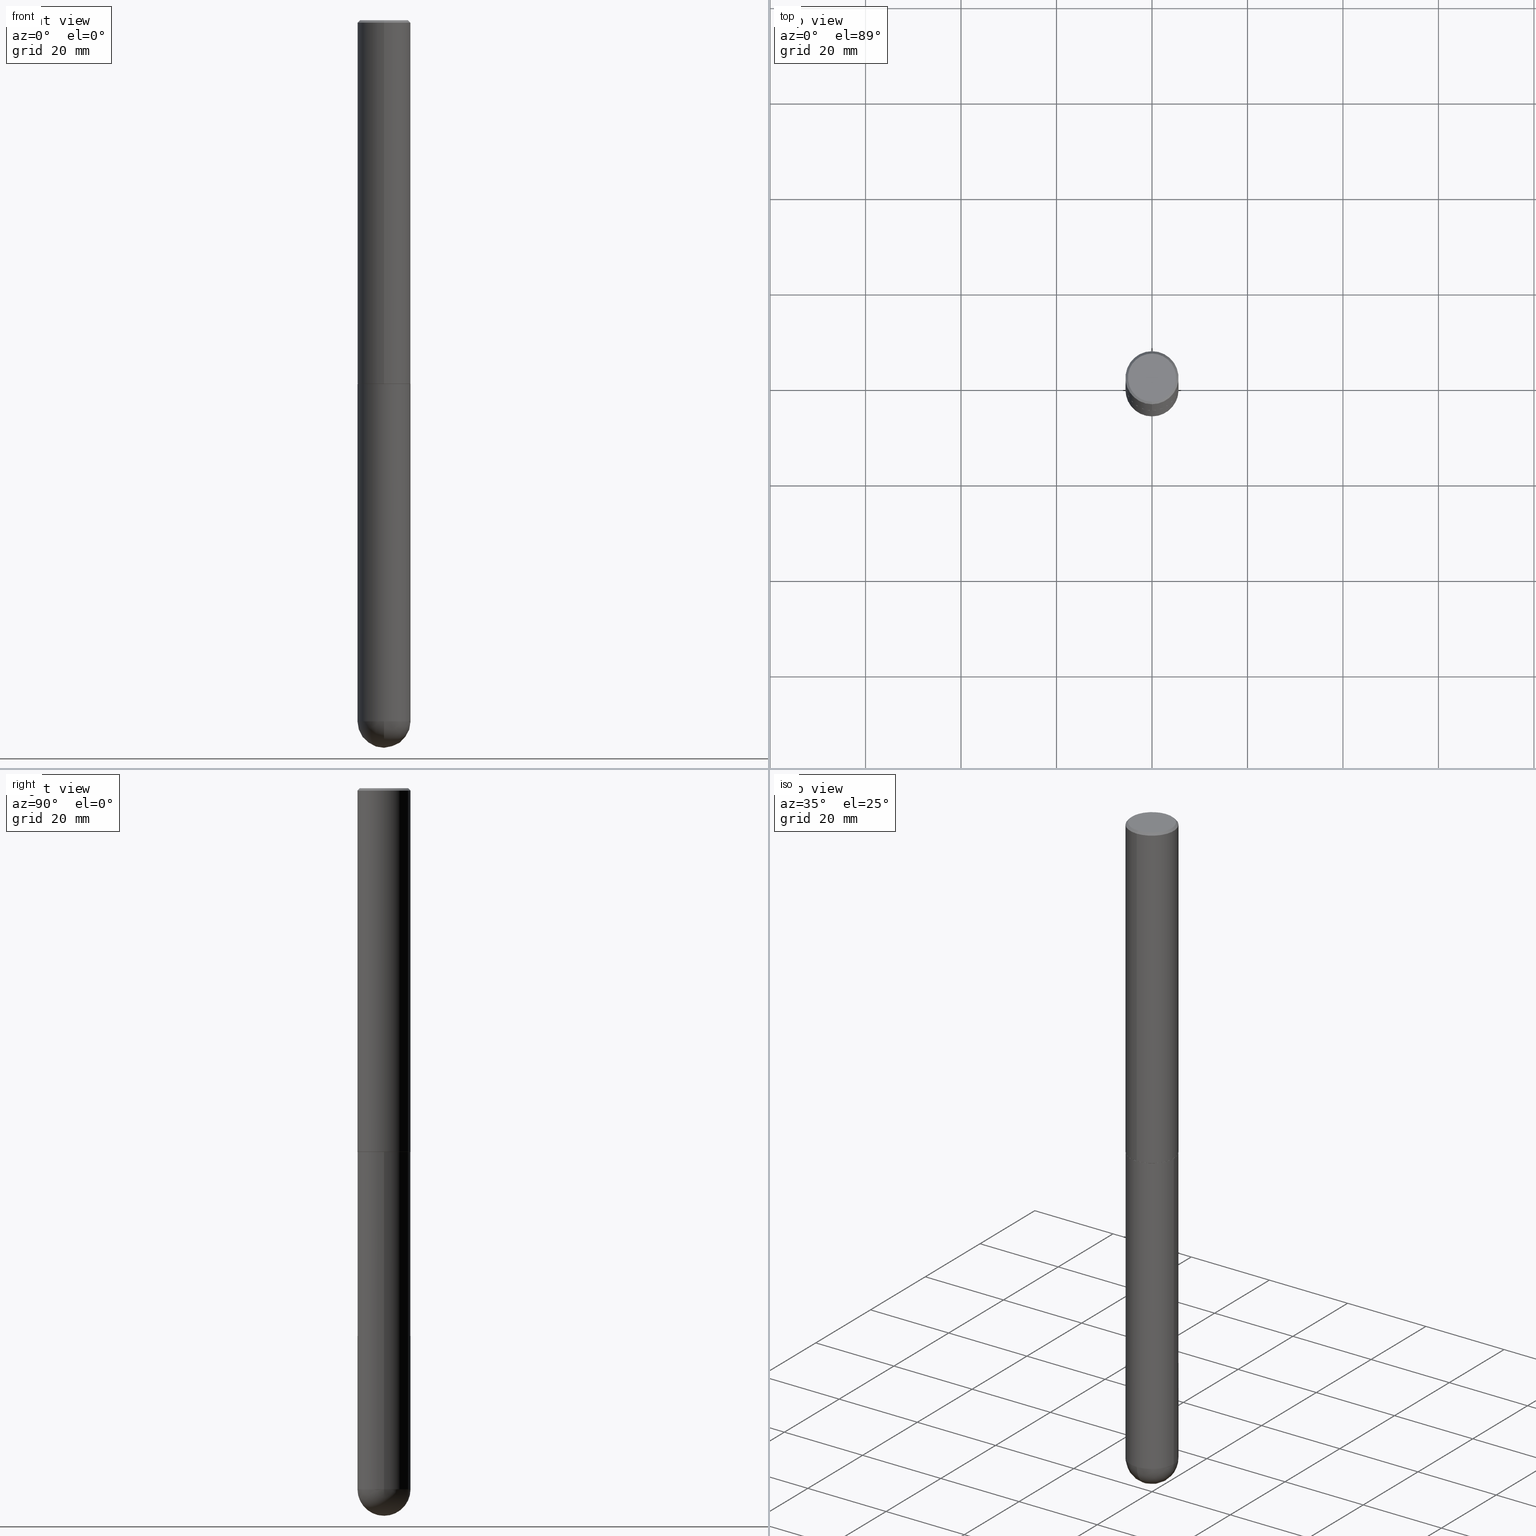
[diagram: canonical four-view strip — front | top / right | iso, engineering-drawing reading convention]
A machine part, canonical four-view strip (front | top / right | iso — engineering-drawing reading convention). The complete STEP part file that produces these views, byte-faithful:
ISO-10303-21;
HEADER;
FILE_DESCRIPTION (( 'STEP AP203' ),
    '1' );
FILE_NAME ('70457.STEP',
    '2024-04-10T12:33:18',
    ( '' ),
    ( '' ),
    'SwSTEP 2.0',
    'SolidWorks 2023',
    '' );
FILE_SCHEMA (( 'CONFIG_CONTROL_DESIGN' ));
ENDSEC;

DATA;
#1 = FACE_OUTER_BOUND ( 'NONE', #335, .T. ) ;
#2 = DIRECTION ( 'NONE',  ( -1.000000000000000000, 6.982962677686265922E-15, -4.883557194083111780E-29 ) ) ;
#3 = CIRCLE ( 'NONE', #195, 0.2187500000000000278 ) ;
#4 = LINE ( 'NONE', #160, #269 ) ;
#5 = DIRECTION ( 'NONE',  ( -2.445468806185136597E-29, 3.491481338843145583E-15, 1.000000000000000000 ) ) ;
#6 = AXIS2_PLACEMENT_3D ( 'NONE', #359, #299, #47 ) ;
#7 = DIRECTION ( 'NONE',  ( -6.982962677686265922E-15, -1.000000000000000000, 2.509160040104949192E-15 ) ) ;
#8 = ORIENTED_EDGE ( 'NONE', *, *, #348, .T. ) ;
#9 = CARTESIAN_POINT ( 'NONE',  ( 1.554312234475257811E-15, 0.2187499999999898692, -2.999000000000000554 ) ) ;
#10 = ORIENTED_EDGE ( 'NONE', *, *, #205, .T. ) ;
#11 = CIRCLE ( 'NONE', #240, 0.2187500000000000000 ) ;
#12 = CONICAL_SURFACE ( 'NONE', #82, 0.2187500000000000278, 0.7853981633974473908 ) ;
#13 = APPLICATION_PROTOCOL_DEFINITION ( 'international standard', 'config_control_design', 1994, #354 ) ;
#14 = VERTEX_POINT ( 'NONE', #407 ) ;
#15 = DIRECTION ( 'NONE',  ( -6.982962677686265922E-15, -1.000000000000000000, 3.492862791899307676E-15 ) ) ;
#16 = ORIENTED_EDGE ( 'NONE', *, *, #193, .T. ) ;
#17 = ADVANCED_FACE ( 'NONE', ( #310 ), #25, .T. ) ;
#18 = FACE_OUTER_BOUND ( 'NONE', #196, .T. ) ;
#19 = AXIS2_PLACEMENT_3D ( 'NONE', #402, #116, #88 ) ;
#20 = CARTESIAN_POINT ( 'NONE',  ( -1.432128957034807592E-15, -0.1987500000000002320, 4.679535352411635507E-16 ) ) ;
#21 = DIRECTION ( 'NONE',  ( -1.000000000000000000, 7.105427357601001070E-15, -4.926315508542082329E-29 ) ) ;
#22 = COORDINATED_UNIVERSAL_TIME_OFFSET ( 5, 0, .BEHIND. ) ;
#23 = DIRECTION ( 'NONE',  ( -2.445024740490438590E-29, 3.492117266192602809E-15, 1.000000000000000000 ) ) ;
#24 = DATE_AND_TIME ( #377, #152 ) ;
#25 = CYLINDRICAL_SURFACE ( 'NONE', #141, 0.2187500000000001943 ) ;
#26 = PERSON_AND_ORGANIZATION ( #162, #100 ) ;
#27 = VECTOR ( 'NONE', #378, 39.37007874015748143 ) ;
#28 = DIRECTION ( 'NONE',  ( -2.445024740490438590E-29, 3.492117266192602809E-15, 1.000000000000000000 ) ) ;
#29 = APPROVAL_PERSON_ORGANIZATION ( #221, #314, #409 ) ;
#30 = DIRECTION ( 'NONE',  ( -6.982962677686265922E-15, -1.000000000000000000, 3.492862791899307676E-15 ) ) ;
#31 = CARTESIAN_POINT ( 'NONE',  ( -0.2187499999999999445, 1.554312234475218762E-15, -1.076017050993260482E-29 ) ) ;
#32 = EDGE_CURVE ( 'NONE', #55, #173, #247, .T. ) ;
#33 = AXIS2_PLACEMENT_3D ( 'NONE', #347, #225, #379 ) ;
#34 = AXIS2_PLACEMENT_3D ( 'NONE', #177, #21, #84 ) ;
#35 = CC_DESIGN_APPROVAL ( #314, ( #214 ) ) ;
#36 = APPLICATION_CONTEXT ( 'configuration controlled 3d designs of mechanical parts and assemblies' ) ;
#37 = CC_DESIGN_PERSON_AND_ORGANIZATION_ASSIGNMENT ( #218, #175, ( #316 ) ) ;
#38 = EDGE_CURVE ( 'NONE', #124, #73, #78, .T. ) ;
#39 = AXIS2_PLACEMENT_3D ( 'NONE', #107, #57, #327 ) ;
#40 = DIRECTION ( 'NONE',  ( 6.982962677686265922E-15, 1.000000000000000000, -3.492862791899307676E-15 ) ) ;
#41 = EDGE_LOOP ( 'NONE', ( #42, #237, #133, #16 ) ) ;
#42 = ORIENTED_EDGE ( 'NONE', *, *, #256, .F. ) ;
#43 = AXIS2_PLACEMENT_3D ( 'NONE', #367, #333, #52 ) ;
#44 = CARTESIAN_POINT ( 'NONE',  ( -1.554312234475076570E-15, -0.2187500000000200950, -5.781249999999999112 ) ) ;
#45 = ADVANCED_FACE ( 'NONE', ( #50 ), #404, .F. ) ;
#46 = ORIENTED_EDGE ( 'NONE', *, *, #300, .F. ) ;
#47 = DIRECTION ( 'NONE',  ( -6.982962677686265922E-15, -1.000000000000000000, 2.509160040104949192E-15 ) ) ;
#48 = CARTESIAN_POINT ( 'NONE',  ( 1.550759520796492805E-15, 0.2177499999999895075, -3.000000000000000444 ) ) ;
#49 = DATE_AND_TIME ( #61, #264 ) ;
#50 = FACE_OUTER_BOUND ( 'NONE', #252, .T. ) ;
#51 = EDGE_CURVE ( 'NONE', #98, #14, #158, .T. ) ;
#52 = DIRECTION ( 'NONE',  ( -6.982962677686265922E-15, -1.000000000000000000, 3.492117266192603203E-15 ) ) ;
#53 = CALENDAR_DATE ( 2024, 10, 4 ) ;
#54 = AXIS2_PLACEMENT_3D ( 'NONE', #112, #250, #244 ) ;
#55 = VERTEX_POINT ( 'NONE', #278 ) ;
#56 = DIRECTION ( 'NONE',  ( 1.000000000000000000, -6.982962677686265133E-15, 0.000000000000000000 ) ) ;
#57 = DIRECTION ( 'NONE',  ( -2.445468806185136597E-29, 3.491481338843145583E-15, 1.000000000000000000 ) ) ;
#58 = PERSON_AND_ORGANIZATION ( #162, #100 ) ;
#59 = EDGE_LOOP ( 'NONE', ( #369, #79, #399, #199 ) ) ;
#60 = FACE_OUTER_BOUND ( 'NONE', #104, .T. ) ;
#61 = CALENDAR_DATE ( 2024, 10, 4 ) ;
#62 = CIRCLE ( 'NONE', #213, 0.2187500000000000000 ) ;
#63 = EDGE_CURVE ( 'NONE', #392, #411, #178, .T. ) ;
#64 = ORIENTED_EDGE ( 'NONE', *, *, #51, .T. ) ;
#65 = DIRECTION ( 'NONE',  ( 6.982962677686265922E-15, 1.000000000000000000, -4.995379188414666942E-15 ) ) ;
#66 = EDGE_CURVE ( 'NONE', #411, #71, #182, .T. ) ;
#67 = AXIS2_PLACEMENT_3D ( 'NONE', #219, #341, #381 ) ;
#68 = CIRCLE ( 'NONE', #99, 0.2187499999999999445 ) ;
#69 = VERTEX_POINT ( 'NONE', #150 ) ;
#70 = DIRECTION ( 'NONE',  ( 0.000000000000000000, 0.000000000000000000, 1.000000000000000000 ) ) ;
#71 = VERTEX_POINT ( 'NONE', #281 ) ;
#72 = DIRECTION ( 'NONE',  ( -2.445024740490438590E-29, 3.492117266192602809E-15, 1.000000000000000000 ) ) ;
#73 = VERTEX_POINT ( 'NONE', #288 ) ;
#74 = CIRCLE ( 'NONE', #169, 0.2187499999999999445 ) ;
#75 = CARTESIAN_POINT ( 'NONE',  ( 7.332629196730824746E-29, -1.047285968131161497E-14, -2.999000000000000110 ) ) ;
#76 = ORIENTED_EDGE ( 'NONE', *, *, #256, .T. ) ;
#77 = CC_DESIGN_DATE_AND_TIME_ASSIGNMENT ( #148, #368, ( #214 ) ) ;
#78 = LINE ( 'NONE', #189, #223 ) ;
#79 = ORIENTED_EDGE ( 'NONE', *, *, #300, .T. ) ;
#80 = AXIS2_PLACEMENT_3D ( 'NONE', #157, #2, #65 ) ;
#81 = PRODUCT_DEFINITION_FORMATION_WITH_SPECIFIED_SOURCE ( 'ANY', '', #410, .NOT_KNOWN. ) ;
#82 = AXIS2_PLACEMENT_3D ( 'NONE', #201, #164, #40 ) ;
#83 = EDGE_LOOP ( 'NONE', ( #206, #76, #111, #106 ) ) ;
#84 = DIRECTION ( 'NONE',  ( -7.105427357601001070E-15, -1.000000000000000000, 0.000000000000000000 ) ) ;
#85 = DIRECTION ( 'NONE',  ( -6.982962677686265922E-15, -1.000000000000000000, 3.492117266192602415E-15 ) ) ;
#86 = CARTESIAN_POINT ( 'NONE',  ( 4.890049480980889546E-31, -6.984234532385222726E-17, -0.02000000000000005246 ) ) ;
#87 = DATE_AND_TIME ( #303, #260 ) ;
#88 = DIRECTION ( 'NONE',  ( -1.000000000000000000, 6.982962677686265922E-15, -4.876176775795935793E-29 ) ) ;
#89 = AXIS2_PLACEMENT_3D ( 'NONE', #86, #376, #220 ) ;
#90 = CARTESIAN_POINT ( 'NONE',  ( 1.413786653575781871E-28, -2.018512649018693374E-14, -5.781250000000000000 ) ) ;
#91 = ADVANCED_FACE ( 'NONE', ( #1 ), #120, .T. ) ;
#92 = CARTESIAN_POINT ( 'NONE',  ( 7.335074221471313807E-29, -1.047635179857780724E-14, -2.999999999999999556 ) ) ;
#93 = DIRECTION ( 'NONE',  ( 2.445024740490438590E-29, -3.492117266192602415E-15, -1.000000000000000000 ) ) ;
#94 = CIRCLE ( 'NONE', #231, 0.2187499999999999445 ) ;
#95 = AXIS2_PLACEMENT_3D ( 'NONE', #75, #266, #96 ) ;
#96 = DIRECTION ( 'NONE',  ( -6.982962677686265922E-15, -1.000000000000000000, 2.497689594207322427E-15 ) ) ;
#97 = LENGTH_MEASURE_WITH_UNIT ( LENGTH_MEASURE( 0.02539999999999999897 ), #267 );
#98 = VERTEX_POINT ( 'NONE', #20 ) ;
#99 = AXIS2_PLACEMENT_3D ( 'NONE', #349, #5, #315 ) ;
#100 = ORGANIZATION ( 'UNSPECIFIED', 'UNSPECIFIED', '' ) ;
#101 = CARTESIAN_POINT ( 'NONE',  ( 0.000000000000000000, 0.000000000000000000, 0.000000000000000000 ) ) ;
#102 = APPROVAL ( #272, 'UNSPECIFIED' ) ;
#103 = PERSON_AND_ORGANIZATION_ROLE ( 'design_owner' ) ;
#104 = EDGE_LOOP ( 'NONE', ( #208, #10, #216, #332 ) ) ;
#105 = DIRECTION ( 'NONE',  ( -2.445024740490438590E-29, 3.492117266192602809E-15, 1.000000000000000000 ) ) ;
#106 = ORIENTED_EDGE ( 'NONE', *, *, #190, .F. ) ;
#107 = CARTESIAN_POINT ( 'NONE',  ( 0.000000000000000000, 0.000000000000000000, 0.000000000000000000 ) ) ;
#108 = CIRCLE ( 'NONE', #345, 0.2177499999999999991 ) ;
#109 = AXIS2_PLACEMENT_3D ( 'NONE', #328, #317, #132 ) ;
#110 = PERSON_AND_ORGANIZATION_ROLE ( 'classification_officer' ) ;
#111 = ORIENTED_EDGE ( 'NONE', *, *, #161, .T. ) ;
#112 = CARTESIAN_POINT ( 'NONE',  ( 1.380674675784393807E-28, -2.065930885832698876E-14, -5.781250000000000888 ) ) ;
#113 = APPROVAL_DATE_TIME ( #245, #102 ) ;
#114 = ORIENTED_EDGE ( 'NONE', *, *, #63, .T. ) ;
#115 = APPROVAL_STATUS ( 'not_yet_approved' ) ;
#116 = DIRECTION ( 'NONE',  ( 2.438088387897960049E-29, -3.491481338843145188E-15, -1.000000000000000000 ) ) ;
#117 = DIRECTION ( 'NONE',  ( 1.000000000000000000, -6.982962677686262766E-15, 0.000000000000000000 ) ) ;
#118 = VECTOR ( 'NONE', #271, 39.37007874015748143 ) ;
#119 = COORDINATED_UNIVERSAL_TIME_OFFSET ( 5, 0, .BEHIND. ) ;
#120 = CYLINDRICAL_SURFACE ( 'NONE', #282, 0.2187500000000001943 ) ;
#121 = APPROVAL ( #251, 'UNSPECIFIED' ) ;
#122 = DIRECTION ( 'NONE',  ( -2.445024740490438870E-29, 3.492117266192602415E-15, 1.000000000000000000 ) ) ;
#123 = COORDINATED_UNIVERSAL_TIME_OFFSET ( 5, 0, .BEHIND. ) ;
#124 = VERTEX_POINT ( 'NONE', #143 ) ;
#125 = CARTESIAN_POINT ( 'NONE',  ( 4.890049480980889546E-31, -6.984234532385222726E-17, -0.02000000000000005246 ) ) ;
#126 = DIRECTION ( 'NONE',  ( -2.445468806185136597E-29, 3.491481338843145583E-15, 1.000000000000000000 ) ) ;
#127 = EDGE_CURVE ( 'NONE', #364, #73, #136, .T. ) ;
#128 = DIRECTION ( 'NONE',  ( -6.982962677686265922E-15, -1.000000000000000000, 2.509160040104949192E-15 ) ) ;
#129 = DESIGN_CONTEXT ( 'detailed design', #36, 'design' ) ;
#130 = CIRCLE ( 'NONE', #43, 0.1987500000000002320 ) ;
#131 = EDGE_CURVE ( 'NONE', #55, #392, #74, .T. ) ;
#132 = DIRECTION ( 'NONE',  ( 1.000000000000000000, -6.982962677686266711E-15, 4.876176775795935232E-29 ) ) ;
#133 = ORIENTED_EDGE ( 'NONE', *, *, #190, .T. ) ;
#134 = CARTESIAN_POINT ( 'NONE',  ( -0.2187499999999999445, -1.377547301888296510E-14, -5.781250000000000000 ) ) ;
#135 = EDGE_CURVE ( 'NONE', #69, #392, #259, .T. ) ;
#136 = CIRCLE ( 'NONE', #67, 0.2187500000000003608 ) ;
#137 = CC_DESIGN_APPROVAL ( #121, ( #81 ) ) ;
#138 = MECHANICAL_CONTEXT ( 'NONE', #354, 'mechanical' ) ;
#139 = ORIENTED_EDGE ( 'NONE', *, *, #386, .F. ) ;
#140 = ORIENTED_EDGE ( 'NONE', *, *, #63, .F. ) ;
#141 = AXIS2_PLACEMENT_3D ( 'NONE', #248, #23, #185 ) ;
#142 =( GEOMETRIC_REPRESENTATION_CONTEXT ( 3 ) GLOBAL_UNCERTAINTY_ASSIGNED_CONTEXT ( ( #191 ) ) GLOBAL_UNIT_ASSIGNED_CONTEXT ( ( #165, #170, #204 ) ) REPRESENTATION_CONTEXT ( 'NONE', 'WORKASPACE' ) );
#143 = CARTESIAN_POINT ( 'NONE',  ( -1.520540123066111070E-15, -0.2177500000000104630, -2.999999999999999112 ) ) ;
#144 = CARTESIAN_POINT ( 'NONE',  ( -1.500733937012521938E-15, -0.2187500000000000833, -0.01999999999999928571 ) ) ;
#145 = SHAPE_DEFINITION_REPRESENTATION ( #346, #373 ) ;
#146 = DIRECTION ( 'NONE',  ( -4.937700262165980614E-15, -0.7071067811867502995, 0.7071067811863447350 ) ) ;
#147 = LINE ( 'NONE', #217, #382 ) ;
#148 = DATE_AND_TIME ( #308, #391 ) ;
#149 = PRODUCT_RELATED_PRODUCT_CATEGORY ( 'detail', '', ( #410 ) ) ;
#150 = CARTESIAN_POINT ( 'NONE',  ( 1.435104644048483615E-28, -2.140967582683325082E-14, -6.000000000000000888 ) ) ;
#151 = DIRECTION ( 'NONE',  ( -6.982962677686265922E-15, -1.000000000000000000, 2.509160040104949192E-15 ) ) ;
#152 = LOCAL_TIME ( 8, 33, 18.00000000000000000, #401 ) ;
#153 = EDGE_LOOP ( 'NONE', ( #353, #318, #235, #320 ) ) ;
#154 = CARTESIAN_POINT ( 'NONE',  ( 1.413786653575781871E-28, -2.018512649018693374E-14, -5.781250000000000000 ) ) ;
#155 = DIRECTION ( 'NONE',  ( -2.445468806185136877E-29, 3.491481338843145188E-15, 1.000000000000000000 ) ) ;
#156 = CC_DESIGN_PERSON_AND_ORGANIZATION_ASSIGNMENT ( #184, #110, ( #214 ) ) ;
#157 = CARTESIAN_POINT ( 'NONE',  ( 1.380674675784393807E-28, -2.065930885832698876E-14, -5.781250000000000888 ) ) ;
#158 = CIRCLE ( 'NONE', #390, 0.1987500000000002320 ) ;
#159 = CC_DESIGN_APPROVAL ( #102, ( #316 ) ) ;
#160 = CARTESIAN_POINT ( 'NONE',  ( 1.554312234475220340E-15, 0.2187500000000001943, -7.639006519796324684E-16 ) ) ;
#161 = EDGE_CURVE ( 'NONE', #274, #396, #3, .T. ) ;
#162 = PERSON ( 'UNSPECIFIED', 'UNSPECIFIED', 'UNSPECIFIED', ('UNSPECIFIED'), ('UNSPECIFIED'), ('UNSPECIFIED') ) ;
#163 = VECTOR ( 'NONE', #122, 39.37007874015748143 ) ;
#164 = DIRECTION ( 'NONE',  ( 2.445024740490438590E-29, -3.492117266192602809E-15, -1.000000000000000000 ) ) ;
#165 =( CONVERSION_BASED_UNIT ( 'INCH', #97 ) LENGTH_UNIT ( ) NAMED_UNIT ( #366 ) );
#166 = ORIENTED_EDGE ( 'NONE', *, *, #265, .F. ) ;
#167 = FACE_OUTER_BOUND ( 'NONE', #41, .T. ) ;
#168 = ORIENTED_EDGE ( 'NONE', *, *, #261, .T. ) ;
#169 = AXIS2_PLACEMENT_3D ( 'NONE', #90, #126, #257 ) ;
#170 =( NAMED_UNIT ( * ) PLANE_ANGLE_UNIT ( ) SI_UNIT ( $, .RADIAN. ) );
#171 = FACE_OUTER_BOUND ( 'NONE', #306, .T. ) ;
#172 = CARTESIAN_POINT ( 'NONE',  ( 7.336406418555408669E-29, -1.047444401652943478E-14, -2.999999999999999556 ) ) ;
#173 = VERTEX_POINT ( 'NONE', #287 ) ;
#174 = EDGE_CURVE ( 'NONE', #411, #360, #94, .T. ) ;
#175 = PERSON_AND_ORGANIZATION_ROLE ( 'creator' ) ;
#176 = CARTESIAN_POINT ( 'NONE',  ( 5.528317600516741827E-45, -7.895843762255161578E-31, -2.261047714146171219E-16 ) ) ;
#177 = CARTESIAN_POINT ( 'NONE',  ( 1.380674675784393807E-28, -2.065930885832698876E-14, -5.781250000000000888 ) ) ;
#178 = CIRCLE ( 'NONE', #211, 0.2187499999999999445 ) ;
#179 = EDGE_LOOP ( 'NONE', ( #166, #286, #268, #270 ) ) ;
#180 = CYLINDRICAL_SURFACE ( 'NONE', #39, 0.2187499999999999445 ) ;
#181 = CC_DESIGN_PERSON_AND_ORGANIZATION_ASSIGNMENT ( #393, #103, ( #410 ) ) ;
#182 = LINE ( 'NONE', #31, #263 ) ;
#183 = SPHERICAL_SURFACE ( 'NONE', #80, 0.2187499999999993616 ) ;
#184 = PERSON_AND_ORGANIZATION ( #162, #100 ) ;
#185 = DIRECTION ( 'NONE',  ( -6.982962677686265922E-15, -1.000000000000000000, 3.492117266192602415E-15 ) ) ;
#186 = FACE_OUTER_BOUND ( 'NONE', #179, .T. ) ;
#187 = CONICAL_SURFACE ( 'NONE', #89, 0.2187500000000000278, 0.7853981633974473908 ) ;
#188 = APPROVAL_PERSON_ORGANIZATION ( #26, #121, #215 ) ;
#189 = CARTESIAN_POINT ( 'NONE',  ( -1.520540123066111070E-15, -0.2177500000000104630, -2.999999999999999112 ) ) ;
#190 = EDGE_CURVE ( 'NONE', #14, #396, #147, .T. ) ;
#191 = UNCERTAINTY_MEASURE_WITH_UNIT (LENGTH_MEASURE( 1.000000000000000082E-05 ), #165, 'distance_accuracy_value', 'NONE');
#192 = MANIFOLD_SOLID_BREP ( 'Body-Move/Copy2[2]', #337 ) ;
#193 = EDGE_CURVE ( 'NONE', #396, #274, #311, .T. ) ;
#194 = CARTESIAN_POINT ( 'NONE',  ( 1.527523085743871237E-15, 0.2187499999999999445, -0.02000000000000081574 ) ) ;
#195 = AXIS2_PLACEMENT_3D ( 'NONE', #125, #312, #30 ) ;
#196 = EDGE_LOOP ( 'NONE', ( #243, #326, #339, #140 ) ) ;
#197 = ADVANCED_FACE ( 'NONE', ( #273 ), #241, .F. ) ;
#198 = CYLINDRICAL_SURFACE ( 'NONE', #109, 0.2187499999999999445 ) ;
#199 = ORIENTED_EDGE ( 'NONE', *, *, #348, .F. ) ;
#200 = ORIENTED_EDGE ( 'NONE', *, *, #329, .F. ) ;
#201 = CARTESIAN_POINT ( 'NONE',  ( 4.890049480980889546E-31, -6.984234532385222726E-17, -0.02000000000000005246 ) ) ;
#202 = AXIS2_PLACEMENT_3D ( 'NONE', #350, #307, #151 ) ;
#203 = DIRECTION ( 'NONE',  ( -6.982962677686265922E-15, -1.000000000000000000, 3.492117266192602415E-15 ) ) ;
#204 =( NAMED_UNIT ( * ) SI_UNIT ( $, .STERADIAN. ) SOLID_ANGLE_UNIT ( ) );
#205 = EDGE_CURVE ( 'NONE', #239, #364, #280, .T. ) ;
#206 = ORIENTED_EDGE ( 'NONE', *, *, #51, .F. ) ;
#207 = CARTESIAN_POINT ( 'NONE',  ( 4.890049480980889546E-31, -6.984234532385222726E-17, -0.02000000000000005246 ) ) ;
#208 = ORIENTED_EDGE ( 'NONE', *, *, #386, .T. ) ;
#209 = LINE ( 'NONE', #370, #275 ) ;
#210 = ORIENTED_EDGE ( 'NONE', *, *, #66, .F. ) ;
#211 = AXIS2_PLACEMENT_3D ( 'NONE', #313, #302, #56 ) ;
#212 = ADVANCED_FACE ( 'NONE', ( #171 ), #180, .T. ) ;
#213 = AXIS2_PLACEMENT_3D ( 'NONE', #298, #331, #117 ) ;
#214 = SECURITY_CLASSIFICATION ( '', '', #254 ) ;
#215 = APPROVAL_ROLE ( '' ) ;
#216 = ORIENTED_EDGE ( 'NONE', *, *, #403, .F. ) ;
#217 = CARTESIAN_POINT ( 'NONE',  ( 1.527523085743871237E-15, 0.2187499999999999445, -0.02000000000000081574 ) ) ;
#218 = PERSON_AND_ORGANIZATION ( #162, #100 ) ;
#219 = CARTESIAN_POINT ( 'NONE',  ( 7.332629196730824746E-29, -1.047285968131161497E-14, -2.999000000000000110 ) ) ;
#220 = DIRECTION ( 'NONE',  ( 6.982962677686265922E-15, 1.000000000000000000, -3.492862791899307676E-15 ) ) ;
#221 = PERSON_AND_ORGANIZATION ( #162, #100 ) ;
#222 = ORIENTED_EDGE ( 'NONE', *, *, #32, .T. ) ;
#223 = VECTOR ( 'NONE', #146, 39.37007874015748143 ) ;
#224 = EDGE_CURVE ( 'NONE', #71, #173, #62, .T. ) ;
#225 = DIRECTION ( 'NONE',  ( 1.000000000000000000, -6.982962677686265922E-15, 4.883557194083112340E-29 ) ) ;
#226 = DIRECTION ( 'NONE',  ( 6.982962677686265922E-15, 1.000000000000000000, -3.492117266192602415E-15 ) ) ;
#227 = CC_DESIGN_PERSON_AND_ORGANIZATION_ASSIGNMENT ( #301, #334, ( #81 ) ) ;
#228 = AXIS2_PLACEMENT_3D ( 'NONE', #207, #105, #15 ) ;
#229 = CC_DESIGN_DATE_AND_TIME_ASSIGNMENT ( #24, #343, ( #316 ) ) ;
#230 = CARTESIAN_POINT ( 'NONE',  ( 7.335074221471313807E-29, -1.047635179857780724E-14, -2.999999999999999556 ) ) ;
#231 = AXIS2_PLACEMENT_3D ( 'NONE', #154, #412, #397 ) ;
#232 = EDGE_LOOP ( 'NONE', ( #210, #365, #330, #222, #297 ) ) ;
#233 = APPROVAL_PERSON_ORGANIZATION ( #324, #102, #395 ) ;
#234 = CARTESIAN_POINT ( 'NONE',  ( 1.527523085744008105E-15, 0.2187499999999792666, -5.781250000000000888 ) ) ;
#235 = ORIENTED_EDGE ( 'NONE', *, *, #38, .T. ) ;
#236 = APPLICATION_PROTOCOL_DEFINITION ( 'international standard', 'config_control_design', 1994, #36 ) ;
#237 = ORIENTED_EDGE ( 'NONE', *, *, #261, .F. ) ;
#238 = CC_DESIGN_PERSON_AND_ORGANIZATION_ASSIGNMENT ( #58, #285, ( #81 ) ) ;
#239 = VERTEX_POINT ( 'NONE', #48 ) ;
#240 = AXIS2_PLACEMENT_3D ( 'NONE', #172, #296, #355 ) ;
#241 = PLANE ( 'NONE',  #371 ) ;
#242 = APPROVAL_DATE_TIME ( #87, #121 ) ;
#243 = ORIENTED_EDGE ( 'NONE', *, *, #135, .F. ) ;
#244 = DIRECTION ( 'NONE',  ( 6.982962677686265922E-15, 1.000000000000000000, -4.995379188414666942E-15 ) ) ;
#245 = DATE_AND_TIME ( #53, #338 ) ;
#246 = ADVANCED_FACE ( 'NONE', ( #18 ), #400, .T. ) ;
#247 = LINE ( 'NONE', #255, #27 ) ;
#248 = CARTESIAN_POINT ( 'NONE',  ( 0.000000000000000000, 0.000000000000000000, 0.000000000000000000 ) ) ;
#249 = CONICAL_SURFACE ( 'NONE', #6, 0.2177499999999999991, 0.7853981633977384913 ) ;
#250 = DIRECTION ( 'NONE',  ( -1.000000000000000000, 6.982962677686265922E-15, -4.883557194083111780E-29 ) ) ;
#251 = APPROVAL_STATUS ( 'not_yet_approved' ) ;
#252 = EDGE_LOOP ( 'NONE', ( #356, #358 ) ) ;
#253 = FACE_OUTER_BOUND ( 'NONE', #83, .T. ) ;
#254 = SECURITY_CLASSIFICATION_LEVEL ( 'unclassified' ) ;
#255 = CARTESIAN_POINT ( 'NONE',  ( 0.2187499999999999445, -1.527523085743870449E-15, 1.066663669705360604E-29 ) ) ;
#256 = EDGE_CURVE ( 'NONE', #98, #274, #209, .T. ) ;
#257 = DIRECTION ( 'NONE',  ( 1.000000000000000000, -6.982962677686265133E-15, 0.000000000000000000 ) ) ;
#258 = DIRECTION ( 'NONE',  ( -2.445024740490438870E-29, 3.492117266192602415E-15, 1.000000000000000000 ) ) ;
#259 = CIRCLE ( 'NONE', #33, 0.2187499999999993616 ) ;
#260 = LOCAL_TIME ( 8, 33, 18.00000000000000000, #119 ) ;
#261 = EDGE_CURVE ( 'NONE', #14, #98, #130, .T. ) ;
#262 = FACE_OUTER_BOUND ( 'NONE', #279, .T. ) ;
#263 = VECTOR ( 'NONE', #155, 39.37007874015748143 ) ;
#264 = LOCAL_TIME ( 8, 33, 18.00000000000000000, #22 ) ;
#265 = EDGE_CURVE ( 'NONE', #69, #360, #291, .T. ) ;
#266 = DIRECTION ( 'NONE',  ( -2.445024740490438590E-29, 3.492117266192602809E-15, 1.000000000000000000 ) ) ;
#267 =( LENGTH_UNIT ( ) NAMED_UNIT ( * ) SI_UNIT ( $, .METRE. ) );
#268 = ORIENTED_EDGE ( 'NONE', *, *, #131, .F. ) ;
#269 = VECTOR ( 'NONE', #258, 39.37007874015748143 ) ;
#270 = ORIENTED_EDGE ( 'NONE', *, *, #277, .F. ) ;
#271 = DIRECTION ( 'NONE',  ( 5.024295867789520205E-15, 0.7071067811867551844, 0.7071067811863398500 ) ) ;
#272 = APPROVAL_STATUS ( 'not_yet_approved' ) ;
#273 = FACE_OUTER_BOUND ( 'NONE', #304, .T. ) ;
#274 = VERTEX_POINT ( 'NONE', #144 ) ;
#275 = VECTOR ( 'NONE', #276, 39.37007874015748143 ) ;
#276 = DIRECTION ( 'NONE',  ( -4.851104656540959542E-15, -0.7071067811865493491, -0.7071067811865457964 ) ) ;
#277 = EDGE_CURVE ( 'NONE', #360, #55, #68, .T. ) ;
#278 = CARTESIAN_POINT ( 'NONE',  ( 0.2187499999999999445, -1.685730833910205431E-14, -5.781250000000000000 ) ) ;
#279 = EDGE_LOOP ( 'NONE', ( #168, #64 ) ) ;
#280 = LINE ( 'NONE', #340, #118 ) ;
#281 = CARTESIAN_POINT ( 'NONE',  ( -0.2187500000000000000, -1.377547301888296510E-14, -2.999999999999999556 ) ) ;
#282 = AXIS2_PLACEMENT_3D ( 'NONE', #375, #28, #85 ) ;
#283 = LINE ( 'NONE', #408, #163 ) ;
#284 = CIRCLE ( 'NONE', #95, 0.2187500000000003608 ) ;
#285 = PERSON_AND_ORGANIZATION_ROLE ( 'design_supplier' ) ;
#286 = ORIENTED_EDGE ( 'NONE', *, *, #135, .T. ) ;
#287 = CARTESIAN_POINT ( 'NONE',  ( 0.2187500000000000000, -1.200196710227330483E-14, -2.999999999999999556 ) ) ;
#288 = CARTESIAN_POINT ( 'NONE',  ( -1.527523085743799845E-15, -0.2187500000000108524, -2.998999999999999222 ) ) ;
#289 = ADVANCED_FACE ( 'NONE', ( #186 ), #183, .T. ) ;
#290 = DIRECTION ( 'NONE',  ( -2.445024740490438590E-29, 3.492117266192602809E-15, 1.000000000000000000 ) ) ;
#291 = CIRCLE ( 'NONE', #34, 0.2187499999999993616 ) ;
#292 = ORIENTED_EDGE ( 'NONE', *, *, #66, .T. ) ;
#293 = ORIENTED_EDGE ( 'NONE', *, *, #32, .F. ) ;
#294 = AXIS2_PLACEMENT_3D ( 'NONE', #92, #290, #128 ) ;
#295 = ORIENTED_EDGE ( 'NONE', *, *, #131, .T. ) ;
#296 = DIRECTION ( 'NONE',  ( -2.445468806185136597E-29, 3.491481338843145583E-15, 1.000000000000000000 ) ) ;
#297 = ORIENTED_EDGE ( 'NONE', *, *, #224, .F. ) ;
#298 = CARTESIAN_POINT ( 'NONE',  ( 7.336406418555408669E-29, -1.047444401652943478E-14, -2.999999999999999556 ) ) ;
#299 = DIRECTION ( 'NONE',  ( -2.445024740490438590E-29, 3.492117266192602809E-15, 1.000000000000000000 ) ) ;
#300 = EDGE_CURVE ( 'NONE', #364, #396, #4, .T. ) ;
#301 = PERSON_AND_ORGANIZATION ( #162, #100 ) ;
#302 = DIRECTION ( 'NONE',  ( -2.445468806185136597E-29, 3.491481338843145583E-15, 1.000000000000000000 ) ) ;
#303 = CALENDAR_DATE ( 2024, 10, 4 ) ;
#304 = EDGE_LOOP ( 'NONE', ( #139, #200 ) ) ;
#305 = CARTESIAN_POINT ( 'NONE',  ( 7.335074221471313807E-29, -1.047635179857780724E-14, -2.999999999999999556 ) ) ;
#306 = EDGE_LOOP ( 'NONE', ( #114, #292, #389, #293, #295 ) ) ;
#307 = DIRECTION ( 'NONE',  ( -2.445024740490438590E-29, 3.492117266192602809E-15, 1.000000000000000000 ) ) ;
#308 = CALENDAR_DATE ( 2024, 10, 4 ) ;
#309 = ADVANCED_FACE ( 'NONE', ( #383 ), #362, .T. ) ;
#310 = FACE_OUTER_BOUND ( 'NONE', #59, .T. ) ;
#311 = CIRCLE ( 'NONE', #228, 0.2187500000000000278 ) ;
#312 = DIRECTION ( 'NONE',  ( -2.445024740490438590E-29, 3.492117266192602809E-15, 1.000000000000000000 ) ) ;
#313 = CARTESIAN_POINT ( 'NONE',  ( 1.413786653575781871E-28, -2.018512649018693374E-14, -5.781250000000000000 ) ) ;
#314 = APPROVAL ( #115, 'UNSPECIFIED' ) ;
#315 = DIRECTION ( 'NONE',  ( 1.000000000000000000, -6.982962677686265133E-15, 0.000000000000000000 ) ) ;
#316 = PRODUCT_DEFINITION ( 'UNKNOWN', '', #81, #129 ) ;
#317 = DIRECTION ( 'NONE',  ( -2.445468806185136597E-29, 3.491481338843145583E-15, 1.000000000000000000 ) ) ;
#318 = ORIENTED_EDGE ( 'NONE', *, *, #329, .T. ) ;
#319 = FACE_OUTER_BOUND ( 'NONE', #232, .T. ) ;
#320 = ORIENTED_EDGE ( 'NONE', *, *, #127, .F. ) ;
#321 = ADVANCED_FACE ( 'NONE', ( #262 ), #342, .F. ) ;
#322 = DIRECTION ( 'NONE',  ( 1.000000000000000000, 0.000000000000000000, 0.000000000000000000 ) ) ;
#323 = ORIENTED_EDGE ( 'NONE', *, *, #193, .F. ) ;
#324 = PERSON_AND_ORGANIZATION ( #162, #100 ) ;
#325 = CLOSED_SHELL ( 'NONE', ( #212, #246, #289, #45, #398 ) ) ;
#326 = ORIENTED_EDGE ( 'NONE', *, *, #265, .T. ) ;
#327 = DIRECTION ( 'NONE',  ( 1.000000000000000000, -6.982962677686266711E-15, 4.876176775795935232E-29 ) ) ;
#328 = CARTESIAN_POINT ( 'NONE',  ( 0.000000000000000000, 0.000000000000000000, 0.000000000000000000 ) ) ;
#329 = EDGE_CURVE ( 'NONE', #239, #124, #351, .T. ) ;
#330 = ORIENTED_EDGE ( 'NONE', *, *, #277, .T. ) ;
#331 = DIRECTION ( 'NONE',  ( -2.445468806185136597E-29, 3.491481338843145583E-15, 1.000000000000000000 ) ) ;
#332 = ORIENTED_EDGE ( 'NONE', *, *, #38, .F. ) ;
#333 = DIRECTION ( 'NONE',  ( -2.445024740490438590E-29, 3.492117266192602809E-15, 1.000000000000000000 ) ) ;
#334 = PERSON_AND_ORGANIZATION_ROLE ( 'creator' ) ;
#335 = EDGE_LOOP ( 'NONE', ( #46, #394, #8, #323 ) ) ;
#336 = MANIFOLD_SOLID_BREP ( 'Body-Move/Copy2[1]', #325 ) ;
#337 = CLOSED_SHELL ( 'NONE', ( #357, #17, #352, #388, #91, #309, #197, #321 ) ) ;
#338 = LOCAL_TIME ( 8, 33, 18.00000000000000000, #361 ) ;
#339 = ORIENTED_EDGE ( 'NONE', *, *, #174, .F. ) ;
#340 = CARTESIAN_POINT ( 'NONE',  ( 1.547206807117691118E-15, 0.2177499999999895075, -3.000000000000000444 ) ) ;
#341 = DIRECTION ( 'NONE',  ( -2.445024740490438590E-29, 3.492117266192602809E-15, 1.000000000000000000 ) ) ;
#342 = PLANE ( 'NONE',  #385 ) ;
#343 = DATE_TIME_ROLE ( 'creation_date' ) ;
#344 = DIRECTION ( 'NONE',  ( -2.445024740490438590E-29, 3.492117266192602809E-15, 1.000000000000000000 ) ) ;
#345 = AXIS2_PLACEMENT_3D ( 'NONE', #230, #72, #7 ) ;
#346 = PRODUCT_DEFINITION_SHAPE ( 'NONE', 'NONE',  #316 ) ;
#347 = CARTESIAN_POINT ( 'NONE',  ( 1.380674675784393807E-28, -2.065930885832698876E-14, -5.781250000000000888 ) ) ;
#348 = EDGE_CURVE ( 'NONE', #73, #274, #283, .T. ) ;
#349 = CARTESIAN_POINT ( 'NONE',  ( 1.413786653575781871E-28, -2.018512649018693374E-14, -5.781250000000000000 ) ) ;
#350 = CARTESIAN_POINT ( 'NONE',  ( 7.335074221471313807E-29, -1.047635179857780724E-14, -2.999999999999999556 ) ) ;
#351 = CIRCLE ( 'NONE', #202, 0.2177499999999999991 ) ;
#352 = ADVANCED_FACE ( 'NONE', ( #253 ), #187, .T. ) ;
#353 = ORIENTED_EDGE ( 'NONE', *, *, #205, .F. ) ;
#354 = APPLICATION_CONTEXT ( 'configuration controlled 3d designs of mechanical parts and assemblies' ) ;
#355 = DIRECTION ( 'NONE',  ( 1.000000000000000000, -6.982962677686262766E-15, 0.000000000000000000 ) ) ;
#356 = ORIENTED_EDGE ( 'NONE', *, *, #380, .T. ) ;
#357 = ADVANCED_FACE ( 'NONE', ( #60 ), #249, .T. ) ;
#358 = ORIENTED_EDGE ( 'NONE', *, *, #224, .T. ) ;
#359 = CARTESIAN_POINT ( 'NONE',  ( 7.335074221471313807E-29, -1.047635179857780724E-14, -2.999999999999999556 ) ) ;
#360 = VERTEX_POINT ( 'NONE', #44 ) ;
#361 = COORDINATED_UNIVERSAL_TIME_OFFSET ( 5, 0, .BEHIND. ) ;
#362 = CONICAL_SURFACE ( 'NONE', #294, 0.2177499999999999991, 0.7853981633977384913 ) ;
#363 = AXIS2_PLACEMENT_3D ( 'NONE', #101, #70, #322 ) ;
#364 = VERTEX_POINT ( 'NONE', #9 ) ;
#365 = ORIENTED_EDGE ( 'NONE', *, *, #174, .T. ) ;
#366 = DIMENSIONAL_EXPONENTS ( 1.000000000000000000, 0.000000000000000000, 0.000000000000000000, 0.000000000000000000, 0.000000000000000000, 0.000000000000000000, 0.000000000000000000 ) ;
#367 = CARTESIAN_POINT ( 'NONE',  ( 5.528317600516741827E-45, -7.895843762255161578E-31, -2.261047714146171219E-16 ) ) ;
#368 = DATE_TIME_ROLE ( 'classification_date' ) ;
#369 = ORIENTED_EDGE ( 'NONE', *, *, #403, .T. ) ;
#370 = CARTESIAN_POINT ( 'NONE',  ( -1.500733937012521938E-15, -0.2187500000000000833, -0.01999999999999928571 ) ) ;
#371 = AXIS2_PLACEMENT_3D ( 'NONE', #305, #374, #203 ) ;
#372 = DIRECTION ( 'NONE',  ( -6.982962677686265922E-15, -1.000000000000000000, 3.492117266192603203E-15 ) ) ;
#373 = ADVANCED_BREP_SHAPE_REPRESENTATION ( '70457', ( #336, #192, #363 ), #142 ) ;
#374 = DIRECTION ( 'NONE',  ( -2.445024740490438590E-29, 3.492117266192602415E-15, 1.000000000000000000 ) ) ;
#375 = CARTESIAN_POINT ( 'NONE',  ( 0.000000000000000000, 0.000000000000000000, 0.000000000000000000 ) ) ;
#376 = DIRECTION ( 'NONE',  ( 2.445024740490438590E-29, -3.492117266192602809E-15, -1.000000000000000000 ) ) ;
#377 = CALENDAR_DATE ( 2024, 10, 4 ) ;
#378 = DIRECTION ( 'NONE',  ( -2.445468806185136877E-29, 3.491481338843145188E-15, 1.000000000000000000 ) ) ;
#379 = DIRECTION ( 'NONE',  ( 6.982962677686266711E-15, 1.000000000000000000, 0.000000000000000000 ) ) ;
#380 = EDGE_CURVE ( 'NONE', #173, #71, #11, .T. ) ;
#381 = DIRECTION ( 'NONE',  ( -6.982962677686265922E-15, -1.000000000000000000, 2.497689594207322427E-15 ) ) ;
#382 = VECTOR ( 'NONE', #405, 39.37007874015748143 ) ;
#383 = FACE_OUTER_BOUND ( 'NONE', #153, .T. ) ;
#384 = CARTESIAN_POINT ( 'NONE',  ( 1.387863832190147008E-15, 0.1987500000000002320, -8.071106923630893321E-16 ) ) ;
#385 = AXIS2_PLACEMENT_3D ( 'NONE', #384, #93, #226 ) ;
#386 = EDGE_CURVE ( 'NONE', #124, #239, #108, .T. ) ;
#387 = CC_DESIGN_SECURITY_CLASSIFICATION ( #214, ( #81 ) ) ;
#388 = ADVANCED_FACE ( 'NONE', ( #167 ), #12, .T. ) ;
#389 = ORIENTED_EDGE ( 'NONE', *, *, #380, .F. ) ;
#390 = AXIS2_PLACEMENT_3D ( 'NONE', #176, #344, #372 ) ;
#391 = LOCAL_TIME ( 8, 33, 18.00000000000000000, #123 ) ;
#392 = VERTEX_POINT ( 'NONE', #234 ) ;
#393 = PERSON_AND_ORGANIZATION ( #162, #100 ) ;
#394 = ORIENTED_EDGE ( 'NONE', *, *, #127, .T. ) ;
#395 = APPROVAL_ROLE ( '' ) ;
#396 = VERTEX_POINT ( 'NONE', #194 ) ;
#397 = DIRECTION ( 'NONE',  ( 1.000000000000000000, -6.982962677686265133E-15, 0.000000000000000000 ) ) ;
#398 = ADVANCED_FACE ( 'NONE', ( #319 ), #198, .T. ) ;
#399 = ORIENTED_EDGE ( 'NONE', *, *, #161, .F. ) ;
#400 = SPHERICAL_SURFACE ( 'NONE', #54, 0.2187499999999993616 ) ;
#401 = COORDINATED_UNIVERSAL_TIME_OFFSET ( 5, 0, .BEHIND. ) ;
#402 = CARTESIAN_POINT ( 'NONE',  ( 1.527523085743943813E-15, 0.2187499999999895084, -3.000000000000000444 ) ) ;
#403 = EDGE_CURVE ( 'NONE', #73, #364, #284, .T. ) ;
#404 = PLANE ( 'NONE',  #19 ) ;
#405 = DIRECTION ( 'NONE',  ( 4.937700262164543309E-15, 0.7071067811865444641, -0.7071067811865506814 ) ) ;
#406 = APPROVAL_DATE_TIME ( #49, #314 ) ;
#407 = CARTESIAN_POINT ( 'NONE',  ( 1.457693458967009122E-15, 0.1987500000000002320, -9.201630780703978931E-16 ) ) ;
#408 = CARTESIAN_POINT ( 'NONE',  ( -1.527523085743872026E-15, -0.2187500000000001943, 7.639006519796324684E-16 ) ) ;
#409 = APPROVAL_ROLE ( '' ) ;
#410 = PRODUCT ( '70457', '70457', '', ( #138 ) ) ;
#411 = VERTEX_POINT ( 'NONE', #134 ) ;
#412 = DIRECTION ( 'NONE',  ( -2.445468806185136597E-29, 3.491481338843145583E-15, 1.000000000000000000 ) ) ;
ENDSEC;
END-ISO-10303-21;
